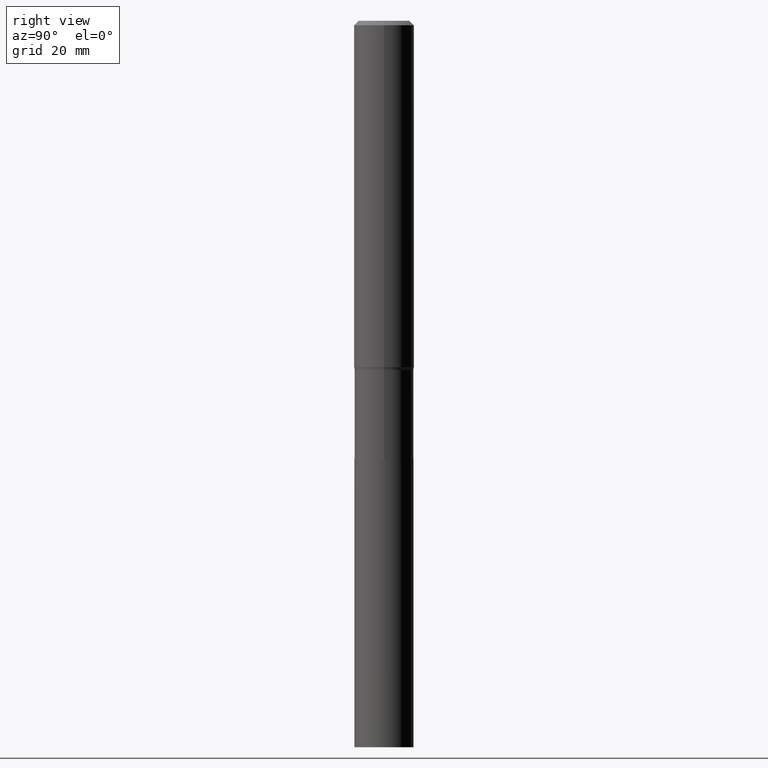
[diagram: clean part render]
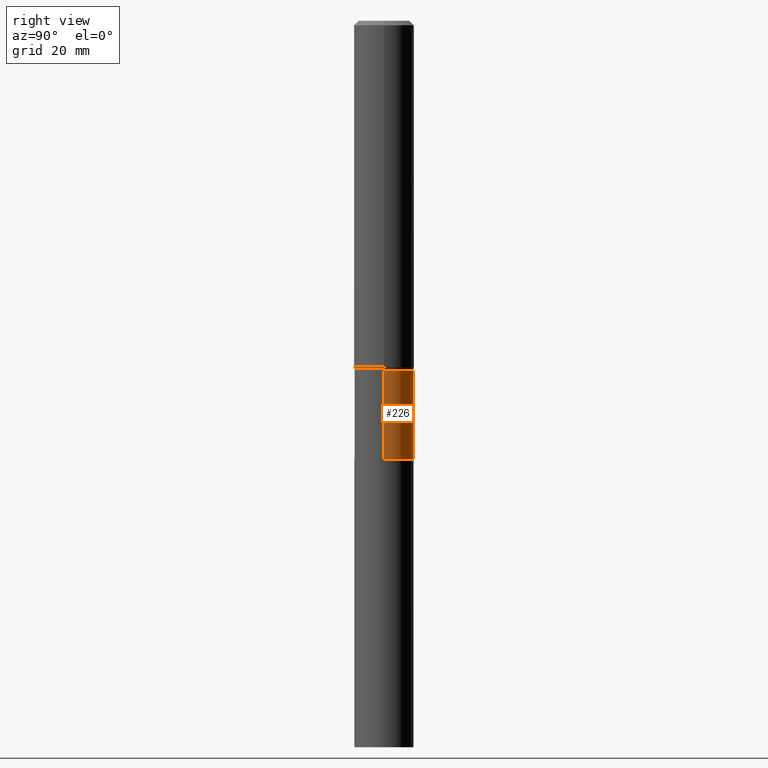
[diagram: same view with one face highlighted and labeled with its STEP entity id]
A machine part, right view. The second image highlights one B-rep face of the part: STEP entity #226.
In plain terms, the highlighted cylindrical surface (edge-blend (fillet) strip) has radius 5.9004 mm, axis along (-0, 0, 1).
Its self-contained STEP definition (entity closure, byte-faithful):
#34 = CIRCLE ( 'NONE', #340, 0.2323000000000000065 ) ;
#48 = CIRCLE ( 'NONE', #378, 0.2322999999999998955 ) ;
#57 = EDGE_CURVE ( 'NONE', #84, #87, #186, .T. ) ;
#73 = DIRECTION ( 'NONE',  ( 1.000000000000000000, -6.982962677686269866E-15, 0.000000000000000000 ) ) ;
#84 = VERTEX_POINT ( 'NONE', #338 ) ;
#87 = VERTEX_POINT ( 'NONE', #373 ) ;
#103 = CARTESIAN_POINT ( 'NONE',  ( 8.422683662262848798E-29, -1.202536002724356323E-14, -3.444200000000000372 ) ) ;
#108 = DIRECTION ( 'NONE',  ( -2.445468806185136597E-29, 3.491481338843145583E-15, 1.000000000000000000 ) ) ;
#112 = AXIS2_PLACEMENT_3D ( 'NONE', #250, #207, #203 ) ;
#141 = CYLINDRICAL_SURFACE ( 'NONE', #112, 0.2322999999999999510 ) ;
#151 = VERTEX_POINT ( 'NONE', #242 ) ;
#161 = VECTOR ( 'NONE', #190, 39.37007874015748143 ) ;
#186 = LINE ( 'NONE', #464, #468 ) ;
#188 = FACE_OUTER_BOUND ( 'NONE', #337, .T. ) ;
#190 = DIRECTION ( 'NONE',  ( -2.445468806185136877E-29, 3.491481338843145188E-15, 1.000000000000000000 ) ) ;
#192 = VERTEX_POINT ( 'NONE', #209 ) ;
#203 = DIRECTION ( 'NONE',  ( 1.000000000000000000, -6.982962677686266711E-15, 4.876176775795935232E-29 ) ) ;
#207 = DIRECTION ( 'NONE',  ( -2.445468806185136597E-29, 3.491481338843145583E-15, 1.000000000000000000 ) ) ;
#209 = CARTESIAN_POINT ( 'NONE',  ( 0.2322999999999998955, -1.121324146782864033E-14, -2.746999999999999886 ) ) ;
#215 = DIRECTION ( 'NONE',  ( -2.445468806185136877E-29, 3.491481338843145188E-15, 1.000000000000000000 ) ) ;
#226 = ADVANCED_FACE ( 'NONE', ( #188 ), #141, .T. ) ;
#242 = CARTESIAN_POINT ( 'NONE',  ( 0.2323000000000000065, -1.364750225727008272E-14, -3.444200000000000372 ) ) ;
#250 = CARTESIAN_POINT ( 'NONE',  ( 0.000000000000000000, 0.000000000000000000, 0.000000000000000000 ) ) ;
#278 = EDGE_CURVE ( 'NONE', #151, #192, #448, .T. ) ;
#337 = EDGE_LOOP ( 'NONE', ( #363, #412, #413, #397 ) ) ;
#338 = CARTESIAN_POINT ( 'NONE',  ( -0.2323000000000000065, -9.157638857352128074E-15, -3.444200000000000372 ) ) ;
#340 = AXIS2_PLACEMENT_3D ( 'NONE', #103, #357, #462 ) ;
#352 = EDGE_CURVE ( 'NONE', #151, #84, #34, .T. ) ;
#357 = DIRECTION ( 'NONE',  ( -2.445468806185136597E-29, 3.491481338843145583E-15, 1.000000000000000000 ) ) ;
#363 = ORIENTED_EDGE ( 'NONE', *, *, #352, .T. ) ;
#373 = CARTESIAN_POINT ( 'NONE',  ( -0.2322999999999998955, -9.157638857352128074E-15, -2.746999999999999886 ) ) ;
#378 = AXIS2_PLACEMENT_3D ( 'NONE', #389, #108, #73 ) ;
#389 = CARTESIAN_POINT ( 'NONE',  ( 6.717702810590569953E-29, -9.591099237802120838E-15, -2.746999999999999886 ) ) ;
#397 = ORIENTED_EDGE ( 'NONE', *, *, #278, .F. ) ;
#412 = ORIENTED_EDGE ( 'NONE', *, *, #57, .T. ) ;
#413 = ORIENTED_EDGE ( 'NONE', *, *, #437, .F. ) ;
#414 = CARTESIAN_POINT ( 'NONE',  ( 0.2322999999999999510, -1.622142230026519492E-15, 1.132735865017395539E-29 ) ) ;
#437 = EDGE_CURVE ( 'NONE', #192, #87, #48, .T. ) ;
#448 = LINE ( 'NONE', #414, #161 ) ;
#462 = DIRECTION ( 'NONE',  ( 1.000000000000000000, -6.982962677686265922E-15, 0.000000000000000000 ) ) ;
#464 = CARTESIAN_POINT ( 'NONE',  ( -0.2322999999999999510, 1.650590775170712383E-15, -1.142668621466214426E-29 ) ) ;
#468 = VECTOR ( 'NONE', #215, 39.37007874015748143 ) ;